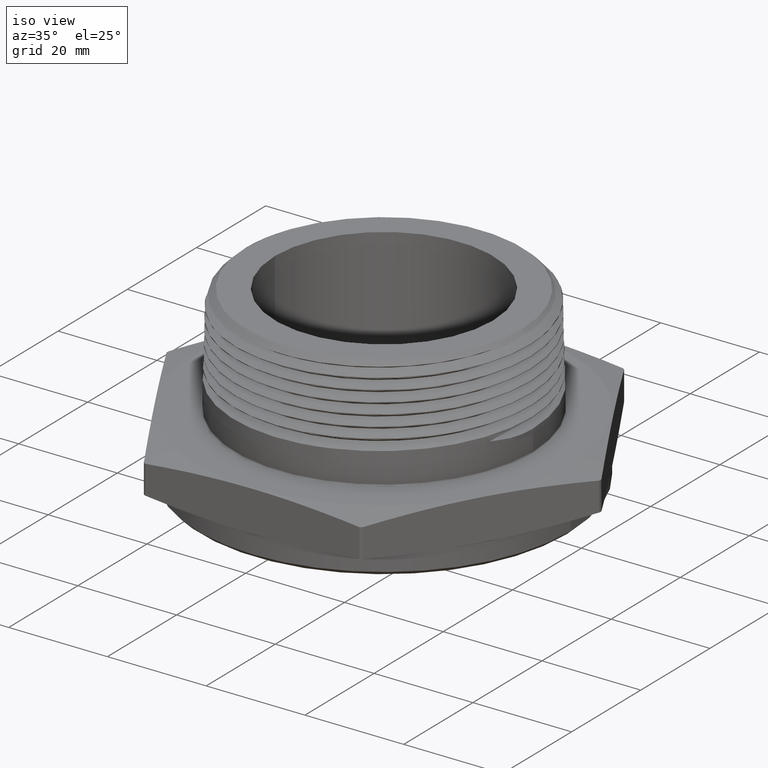
[diagram: clean part render]
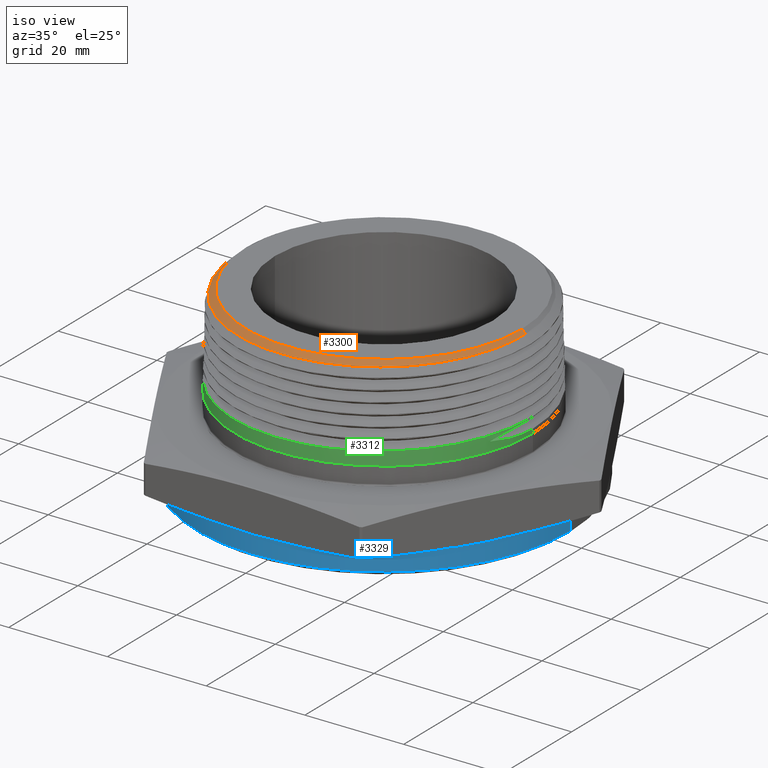
[diagram: same view with three faces highlighted in distinct colors, each labeled with its STEP entity id]
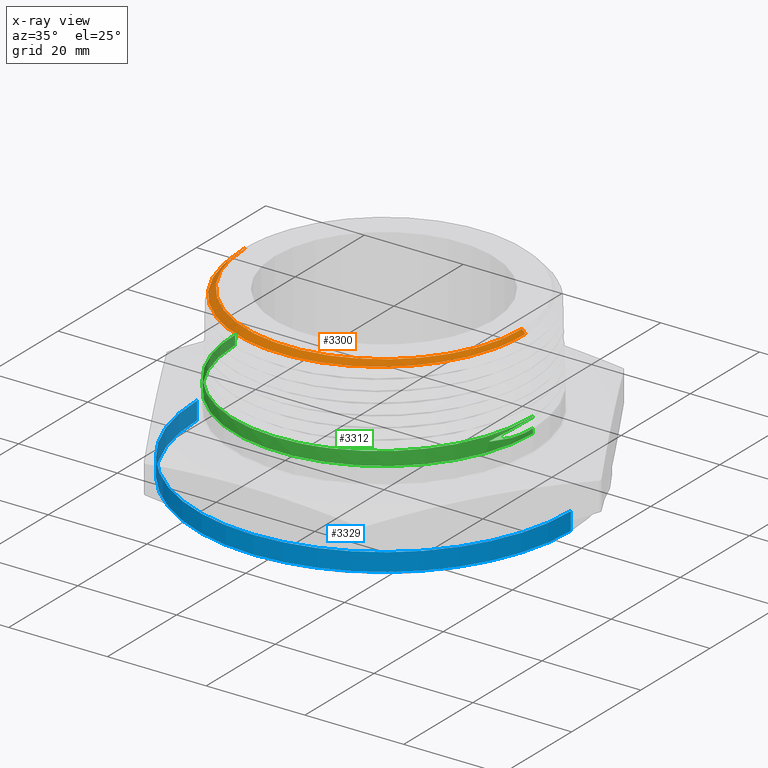
[diagram: x-ray of the same camera — body ghosted, the three highlighted faces saturated]
A machine part, iso view with three faces highlighted in distinct colors.
The next image is the same camera in x-ray (body ghosted, the three faces saturated) — at least one of them is partly hidden behind the body in this view.
Their STEP definitions:

[orange] entity #3300 — the highlighted conical surface has half-angle 45 deg.
#172 = B_SPLINE_CURVE_WITH_KNOTS ( 'NONE', 3,
 ( #1845, #1844, #1908, #1909, #1910, #1911, #1912, #1913, #1914, #1915, #1916, #1917, #1918, #1919, #1920, #1921, #1922, #1923, #1924, #1925, #1926, #1927, #1928, #1929, #1930, #1931, #1932, #1933, #1934, #1935, #1936, #1937, #1938, #1939, #1940, #1941, #1942, #1943, #1944, #1945, #1946, #1947, #1948, #1949, #1950, #1951, #1952, #1953, #1954, #1955, #1956, #1957, #1958, #1959, #1960, #1961, #1962, #1963, #1964, #1965, #1966, #1967, #1968, #1969, #1970, #1971 ),
 .UNSPECIFIED., .F., .F.,
 ( 4, 2, 2, 2, 2, 2, 2, 2, 2, 2, 2, 2, 2, 2, 2, 2, 2, 2, 2, 2, 2, 2, 2, 2, 2, 2, 2, 2, 2, 2, 2, 2, 4 ),
 ( 0.04868734609248241700, 0.05155479554185040500, 0.05442224499121838700, 0.05728969444058637500, 0.05872341916527036600, 0.06015714388995435600, 0.06589204278869031900, 0.06875949223805830100, 0.07019321696274230500, 0.07162694168742628200, 0.07736184058616225900, 0.07879556531084624900, 0.08022929003553025400, 0.08309673948489823500, 0.08883163838363422600, 0.09026536310831823100, 0.09169908783300223500, 0.09456653728237023000, 0.09743398673173822600, 0.09886771145642223000, 0.1003014361811062300, 0.1060363350798422300, 0.1089037845292102200, 0.1103375092538942300, 0.1117712339785782200, 0.1175061328773142100, 0.1203735823266822000, 0.1232410317760502000, 0.1289759306747861900, 0.1347108295735222100, 0.1375782790228902200, 0.1390120037475742200, 0.1404457284722582200 ),
 .UNSPECIFIED. ) ;
#173 = B_SPLINE_CURVE_WITH_KNOTS ( 'NONE', 3,
 ( #1907, #1906, #1977, #1978, #1979, #1980 ),
 .UNSPECIFIED., .F., .F.,
 ( 4, 2, 4 ),
 ( 0.0000000000000000000, 0.002267236822697387800, 0.004534473645394775600 ),
 .UNSPECIFIED. ) ;
#742 = CARTESIAN_POINT ( 'NONE',  ( -1.099700000000000100, 0.0000000000000000000, 1.200000000000000000 ) ) ;
#743 = CARTESIAN_POINT ( 'NONE',  ( 1.099700000000000100, 1.381438622983947700E-016, 1.200000000000000000 ) ) ;
#744 = CARTESIAN_POINT ( 'NONE',  ( -1.086377111140542700, -0.1773428476099730700, 1.198943118028106700 ) ) ;
#746 = CARTESIAN_POINT ( 'NONE',  ( 1.128048924917789600, 2.774533118565267500E-016, 1.171651075082210900 ) ) ;
#748 = CARTESIAN_POINT ( 'NONE',  ( -1.100815782494587200, -4.758545883243128000E-013, 1.198884217505412900 ) ) ;
#750 = CARTESIAN_POINT ( 'NONE',  ( -1.105975229220447200, 2.170469800391788100E-015, 1.193724770779553300 ) ) ;
#751 = CARTESIAN_POINT ( 'NONE',  ( -1.156022545099350200, -7.616783877516080300E-013, 1.143677454900650500 ) ) ;
#865 = EDGE_LOOP ( 'NONE', ( #2938, #2939, #2940, #2941, #2942, #2943, #2944 ) ) ;
#1421 = DIRECTION ( 'NONE',  ( 0.7071067811865516800, 8.659560562354983400E-017, -0.7071067811865433500 ) ) ;
#1424 = CARTESIAN_POINT ( 'NONE',  ( 1.193381189221745000, 1.461470453543071700E-016, 1.106318810778256200 ) ) ;
#1574 = DIRECTION ( 'NONE',  ( -0.7071067811865516800, 0.0000000000000000000, -0.7071067811865433500 ) ) ;
#1614 = CARTESIAN_POINT ( 'NONE',  ( -1.193381189221745000, 0.0000000000000000000, 1.106318810778256200 ) ) ;
#1615 = CARTESIAN_POINT ( 'NONE',  ( 0.0000000000000000000, 0.0000000000000000000, 1.200000000000000000 ) ) ;
#1616 = DIRECTION ( 'NONE',  ( -0.0000000000000000000, -0.0000000000000000000, -1.000000000000000000 ) ) ;
#1617 = DIRECTION ( 'NONE',  ( -1.000000000000000000, 0.0000000000000000000, 0.0000000000000000000 ) ) ;
#1652 = CARTESIAN_POINT ( 'NONE',  ( -1.100815782494587200, -4.758545883243128000E-013, 1.198884217505412900 ) ) ;
#1660 = CARTESIAN_POINT ( 'NONE',  ( -1.100806205085751000, -0.02968471655013145800, 1.198893794914236000 ) ) ;
#1665 = CARTESIAN_POINT ( 'NONE',  ( -1.099589375239146600, -0.05941197086799673100, 1.198906587762517800 ) ) ;
#1666 = CARTESIAN_POINT ( 'NONE',  ( -1.094771355935574300, -0.1185604882071055700, 1.198927329942677900 ) ) ;
#1667 = CARTESIAN_POINT ( 'NONE',  ( -1.091172925390690800, -0.1480129665411386600, 1.198935288694481500 ) ) ;
#1668 = CARTESIAN_POINT ( 'NONE',  ( -1.086377111140542700, -0.1773428476099730700, 1.198943118028106700 ) ) ;
#1844 = CARTESIAN_POINT ( 'NONE',  ( -1.155732476112274700, -0.03765900173205198600, 1.143967523887701600 ) ) ;
#1845 = CARTESIAN_POINT ( 'NONE',  ( -1.156022545099350200, -7.616783877516080300E-013, 1.143677454900650500 ) ) ;
#1906 = CARTESIAN_POINT ( 'NONE',  ( -1.092044101637952500, -0.1480651475286478600, 1.198067086201881400 ) ) ;
#1907 = CARTESIAN_POINT ( 'NONE',  ( -1.086377111140542700, -0.1773428476099730700, 1.198943118028106700 ) ) ;
#1908 = CARTESIAN_POINT ( 'NONE',  ( -1.153584839232487400, -0.07538326107920552400, 1.144259948200319100 ) ) ;
#1909 = CARTESIAN_POINT ( 'NONE',  ( -1.145720699123025300, -0.1497748199282994100, 1.144836582522254400 ) ) ;
#1910 = CARTESIAN_POINT ( 'NONE',  ( -1.140008385819409900, -0.1865861414300361800, 1.145121930871935100 ) ) ;
#1911 = CARTESIAN_POINT ( 'NONE',  ( -1.125075326211576500, -0.2594510406445312800, 1.145695519098483400 ) ) ;
#1912 = CARTESIAN_POINT ( 'NONE',  ( -1.115854318485020500, -0.2955045600757357800, 1.145983988746625900 ) ) ;
#1913 = CARTESIAN_POINT ( 'NONE',  ( -1.099364826409969400, -0.3490107947201751500, 1.146416312541696400 ) ) ;
#1914 = CARTESIAN_POINT ( 'NONE',  ( -1.093424474360386900, -0.3667503461550684600, 1.146560450143012700 ) ) ;
#1915 = CARTESIAN_POINT ( 'NONE',  ( -1.080640879387543700, -0.4020344445436990800, 1.146849476856488500 ) ) ;
#1916 = CARTESIAN_POINT ( 'NONE',  ( -1.073776745271948700, -0.4196270458304300900, 1.146994769250651200 ) ) ;
#1917 = CARTESIAN_POINT ( 'NONE',  ( -1.037436774273118800, -0.5064032880679688600, 1.147721165878564900 ) ) ;
#1918 = CARTESIAN_POINT ( 'NONE',  ( -1.002066694281524600, -0.5719574629704704500, 1.148295106368106400 ) ) ;
#1919 = CARTESIAN_POINT ( 'NONE',  ( -0.9398631380633758500, -0.6646717845927052600, 1.149158233272310000 ) ) ;
#1920 = CARTESIAN_POINT ( 'NONE',  ( -0.9175910766083088500, -0.6946325206029390100, 1.149448517938400600 ) ) ;
#1921 = CARTESIAN_POINT ( 'NONE',  ( -0.8818183673826083300, -0.7381217991068145200, 1.149884749305942800 ) ) ;
#1922 = CARTESIAN_POINT ( 'NONE',  ( -0.8694631503084810900, -0.7524140373077605700, 1.150030784206960800 ) ) ;
#1923 = CARTESIAN_POINT ( 'NONE',  ( -0.8441693956955332900, -0.7802582574265177800, 1.150321398593441700 ) ) ;
#1924 = CARTESIAN_POINT ( 'NONE',  ( -0.8312284866545915900, -0.7938181454637982500, 1.150466040426255900 ) ) ;
#1925 = CARTESIAN_POINT ( 'NONE',  ( -0.7650788531621326400, -0.8598373159049081900, 1.151189555432539100 ) ) ;
#1926 = CARTESIAN_POINT ( 'NONE',  ( -0.7075784400428873900, -0.9070095293552191700, 1.151764743334755800 ) ) ;
#1927 = CARTESIAN_POINT ( 'NONE',  ( -0.6299888595283736900, -0.9589353380601494100, 1.152488463553183600 ) ) ;
#1928 = CARTESIAN_POINT ( 'NONE',  ( -0.6141822792022313400, -0.9689648707373748100, 1.152634120106804900 ) ) ;
#1929 = CARTESIAN_POINT ( 'NONE',  ( -0.5819822340152053200, -0.9883009142329367600, 1.152926544696384600 ) ) ;
#1930 = CARTESIAN_POINT ( 'NONE',  ( -0.5655451191490117300, -0.9976292404965392300, 1.153073649091708400 ) ) ;
#1931 = CARTESIAN_POINT ( 'NONE',  ( -0.5158245019468493700, -1.024248867222522500, 1.153511935127348600 ) ) ;
#1932 = CARTESIAN_POINT ( 'NONE',  ( -0.4820495801586481300, -1.040240430317982600, 1.153800519382405000 ) ) ;
#1933 = CARTESIAN_POINT ( 'NONE',  ( -0.3788915241054038300, -1.083090701929886300, 1.154667715753171100 ) ) ;
#1934 = CARTESIAN_POINT ( 'NONE',  ( -0.3076933121901762600, -1.104875954972495100, 1.155245467548397600 ) ) ;
#1935 = CARTESIAN_POINT ( 'NONE',  ( -0.2155737740381611100, -1.123381399379761700, 1.155975949610936300 ) ) ;
#1936 = CARTESIAN_POINT ( 'NONE',  ( -0.1969550235509941500, -1.126645012103210300, 1.156123456666904100 ) ) ;
#1937 = CARTESIAN_POINT ( 'NONE',  ( -0.1597951184872405700, -1.132216736225951600, 1.156416892652937900 ) ) ;
#1938 = CARTESIAN_POINT ( 'NONE',  ( -0.1412126949860451300, -1.134535049762150700, 1.156563099696703100 ) ) ;
#1939 = CARTESIAN_POINT ( 'NONE',  ( -0.08545814029229337200, -1.140112162738814700, 1.156999903189288100 ) ) ;
#1940 = CARTESIAN_POINT ( 'NONE',  ( -0.04827874102876895300, -1.141996760524349700, 1.157288297448146400 ) ) ;
#1941 = CARTESIAN_POINT ( 'NONE',  ( 0.02609917198298903800, -1.142139833789602000, 1.157867426042184400 ) ) ;
#1942 = CARTESIAN_POINT ( 'NONE',  ( 0.06329768296676777100, -1.140397322790171800, 1.158159177581138800 ) ) ;
#1943 = CARTESIAN_POINT ( 'NONE',  ( 0.1191100115545066400, -1.135023456407182400, 1.158596962962934700 ) ) ;
#1944 = CARTESIAN_POINT ( 'NONE',  ( 0.1377165522320919800, -1.132771266482142800, 1.158742986337622800 ) ) ;
#1945 = CARTESIAN_POINT ( 'NONE',  ( 0.1749345861683658500, -1.127327066544201500, 1.159035833603873700 ) ) ;
#1946 = CARTESIAN_POINT ( 'NONE',  ( 0.1935585197163900700, -1.124129488632241500, 1.159182761490336300 ) ) ;
#1947 = CARTESIAN_POINT ( 'NONE',  ( 0.2856529516094357100, -1.105961873391331700, 1.159914804762040200 ) ) ;
#1948 = CARTESIAN_POINT ( 'NONE',  ( 0.3569030055293710400, -1.084416281480152300, 1.160495050521652500 ) ) ;
#1949 = CARTESIAN_POINT ( 'NONE',  ( 0.4602216756416415100, -1.041817434594732900, 1.161367917406719700 ) ) ;
#1950 = CARTESIAN_POINT ( 'NONE',  ( 0.4940633866030457200, -1.025889697362678800, 1.161661848249700300 ) ) ;
#1951 = CARTESIAN_POINT ( 'NONE',  ( 0.5439011848587670400, -0.9993248965877936700, 1.162104122169632400 ) ) ;
#1952 = CARTESIAN_POINT ( 'NONE',  ( 0.5603326090586350200, -0.9900343603770483900, 1.162251624047457400 ) ) ;
#1953 = CARTESIAN_POINT ( 'NONE',  ( 0.5925243067502423700, -0.9707673259662331600, 1.162544603535244000 ) ) ;
#1954 = CARTESIAN_POINT ( 'NONE',  ( 0.6083292104345888700, -0.9607675901275059000, 1.162690476933392600 ) ) ;
#1955 = CARTESIAN_POINT ( 'NONE',  ( 0.6859197802182609400, -0.9089640156875500300, 1.163420383313245000 ) ) ;
#1956 = CARTESIAN_POINT ( 'NONE',  ( 0.7434476384414554500, -0.8618008686725428000, 1.164001840841155700 ) ) ;
#1957 = CARTESIAN_POINT ( 'NONE',  ( 0.8228515772373431500, -0.7823865557919875700, 1.164881848956407500 ) ) ;
#1958 = CARTESIAN_POINT ( 'NONE',  ( 0.8482733783306230000, -0.7543021652488030000, 1.165180463770775700 ) ) ;
#1959 = CARTESIAN_POINT ( 'NONE',  ( 0.8957575758972289300, -0.6962917450497265700, 1.165769258638797300 ) ) ;
#1960 = CARTESIAN_POINT ( 'NONE',  ( 0.9179195061676614900, -0.6662932916888377700, 1.166060333538932300 ) ) ;
#1961 = CARTESIAN_POINT ( 'NONE',  ( 0.9797589916207393200, -0.5733775314606277500, 1.166936490996067300 ) ) ;
#1962 = CARTESIAN_POINT ( 'NONE',  ( 1.014865097652383400, -0.5075100745602109100, 1.167521278837967400 ) ) ;
#1963 = CARTESIAN_POINT ( 'NONE',  ( 1.072124175133960100, -0.3679437908167438900, 1.168707562117999000 ) ) ;
#1964 = CARTESIAN_POINT ( 'NONE',  ( 1.093368728309821900, -0.2964872291066754700, 1.169292297975261100 ) ) ;
#1965 = CARTESIAN_POINT ( 'NONE',  ( 1.114581296320446200, -0.1868882739845920100, 1.170171725456941000 ) ) ;
#1966 = CARTESIAN_POINT ( 'NONE',  ( 1.119861132993982300, -0.1499494839214511600, 1.170467215691423500 ) ) ;
#1967 = CARTESIAN_POINT ( 'NONE',  ( 1.125031369705212100, -0.09391829508241167400, 1.170911070203300800 ) ) ;
#1968 = CARTESIAN_POINT ( 'NONE',  ( 1.126297208829340600, -0.07508840577746221700, 1.171059607196799800 ) ) ;
#1969 = CARTESIAN_POINT ( 'NONE',  ( 1.127879177832301800, -0.03746228037603365600, 1.171355935803870300 ) ) ;
#1970 = CARTESIAN_POINT ( 'NONE',  ( 1.128196566643479000, -0.01870416178382150800, 1.171503433356522400 ) ) ;
#1971 = CARTESIAN_POINT ( 'NONE',  ( 1.128048924917789600, 2.774533118565267500E-016, 1.171651075082210900 ) ) ;
#1972 = CARTESIAN_POINT ( 'NONE',  ( -1.193381189221745000, 0.0000000000000000000, 1.106318810778256200 ) ) ;
#1973 = DIRECTION ( 'NONE',  ( -0.7071067811865516800, 0.0000000000000000000, -0.7071067811865433500 ) ) ;
#1977 = CARTESIAN_POINT ( 'NONE',  ( -1.096505697157815800, -0.1186446536988723400, 1.197194913947073700 ) ) ;
#1978 = CARTESIAN_POINT ( 'NONE',  ( -1.103036798239352100, -0.05952028204620248000, 1.195458627261829700 ) ) ;
#1979 = CARTESIAN_POINT ( 'NONE',  ( -1.105107613503386800, -0.02974379452529618900, 1.194592386496614400 ) ) ;
#1980 = CARTESIAN_POINT ( 'NONE',  ( -1.105975229220447200, 2.170469800391788100E-015, 1.193724770779553300 ) ) ;
#2372 = VERTEX_POINT ( 'NONE', #742 ) ;
#2373 = VERTEX_POINT ( 'NONE', #743 ) ;
#2374 = VERTEX_POINT ( 'NONE', #744 ) ;
#2376 = VERTEX_POINT ( 'NONE', #746 ) ;
#2378 = VERTEX_POINT ( 'NONE', #748 ) ;
#2380 = VERTEX_POINT ( 'NONE', #750 ) ;
#2381 = VERTEX_POINT ( 'NONE', #751 ) ;
#2778 = DIRECTION ( 'NONE',  ( -1.000000000000000000, 0.0000000000000000000, 0.0000000000000000000 ) ) ;
#2779 = CARTESIAN_POINT ( 'NONE',  ( 0.0000000000000000000, 0.0000000000000000000, 1.106318810778256200 ) ) ;
#2780 = DIRECTION ( 'NONE',  ( -0.0000000000000000000, -0.0000000000000000000, -1.000000000000000000 ) ) ;
#2878 = FACE_OUTER_BOUND ( 'NONE', #865, .T. ) ;
#2885 = CONICAL_SURFACE ( 'NONE', #5798, 1.193381189221745000, 0.7853981633974541600 ) ;
#2938 = ORIENTED_EDGE ( 'NONE', *, *, #5716, .F. ) ;
#2939 = ORIENTED_EDGE ( 'NONE', *, *, #5750, .T. ) ;
#2940 = ORIENTED_EDGE ( 'NONE', *, *, #5751, .T. ) ;
#2941 = ORIENTED_EDGE ( 'NONE', *, *, #5763, .T. ) ;
#2942 = ORIENTED_EDGE ( 'NONE', *, *, #5778, .T. ) ;
#2943 = ORIENTED_EDGE ( 'NONE', *, *, #5777, .T. ) ;
#2944 = ORIENTED_EDGE ( 'NONE', *, *, #5776, .T. ) ;
#3300 = ADVANCED_FACE ( 'NONE', ( #2878 ), #2885, .T. ) ;
#4163 = LINE ( 'NONE', #1614, #4170 ) ;
#4166 = CIRCLE ( 'NONE', #5432, 1.099700000000000100 ) ;
#4170 = VECTOR ( 'NONE', #1574, 39.37007874015748100 ) ;
#4187 = LINE ( 'NONE', #1972, #4194 ) ;
#4194 = VECTOR ( 'NONE', #1973, 39.37007874015748100 ) ;
#5432 = AXIS2_PLACEMENT_3D ( 'NONE', #1615, #1616, #1617 ) ;
#5716 = EDGE_CURVE ( 'NONE', #2373, #2376, #7435, .T. ) ;
#5750 = EDGE_CURVE ( 'NONE', #2373, #2372, #4166, .T. ) ;
#5751 = EDGE_CURVE ( 'NONE', #2372, #2378, #4163, .T. ) ;
#5763 = EDGE_CURVE ( 'NONE', #2378, #2374, #7841, .T. ) ;
#5776 = EDGE_CURVE ( 'NONE', #2381, #2376, #172, .T. ) ;
#5777 = EDGE_CURVE ( 'NONE', #2380, #2381, #4187, .T. ) ;
#5778 = EDGE_CURVE ( 'NONE', #2374, #2380, #173, .T. ) ;
#5798 = AXIS2_PLACEMENT_3D ( 'NONE', #2779, #2780, #2778 ) ;
#7435 = LINE ( 'NONE', #1424, #7439 ) ;
#7439 = VECTOR ( 'NONE', #1421, 39.37007874015748100 ) ;
#7841 = B_SPLINE_CURVE_WITH_KNOTS ( 'NONE', 3,
 ( #1652, #1660, #1665, #1666, #1667, #1668 ),
 .UNSPECIFIED., .F., .F.,
 ( 4, 2, 4 ),
 ( 0.002414601907814261400, 0.004679204686607959000, 0.006943807465401657900 ),
 .UNSPECIFIED. ) ;

[blue] entity #3329 — the highlighted cylindrical surface (partial cylindrical patch) has radius 37.846 mm, axis along (-0, -0, 1).
#186 = VERTEX_POINT ( 'NONE', #888 ) ;
#188 = VERTEX_POINT ( 'NONE', #890 ) ;
#191 = VERTEX_POINT ( 'NONE', #882 ) ;
#296 = FACE_OUTER_BOUND ( 'NONE', #7201, .T. ) ;
#301 = CYLINDRICAL_SURFACE ( 'NONE', #5843, 1.490000000000000400 ) ;
#325 = CIRCLE ( 'NONE', #5397, 1.490000000000000400 ) ;
#738 = CARTESIAN_POINT ( 'NONE',  ( 1.490000000000000400, 0.0000000000000000000, -0.1500000000000016900 ) ) ;
#855 = VERTEX_POINT ( 'NONE', #738 ) ;
#882 = CARTESIAN_POINT ( 'NONE',  ( -1.490000000000000400, 1.824723730729556900E-016, -0.008097840331950446500 ) ) ;
#888 = CARTESIAN_POINT ( 'NONE',  ( -1.490000000000000400, 1.824723730729556900E-016, -0.1500000000000016900 ) ) ;
#890 = CARTESIAN_POINT ( 'NONE',  ( 1.490000000000000400, 0.0000000000000000000, -0.008097840331950633900 ) ) ;
#1505 = DIRECTION ( 'NONE',  ( -0.0000000000000000000, -0.0000000000000000000, 1.000000000000000000 ) ) ;
#1517 = CARTESIAN_POINT ( 'NONE',  ( -1.490000000000000400, 1.824723730729556900E-016, -0.1799999999999999900 ) ) ;
#1544 = CARTESIAN_POINT ( 'NONE',  ( 0.0000000000000000000, 0.0000000000000000000, -0.008097840331950540200 ) ) ;
#1545 = DIRECTION ( 'NONE',  ( -6.274932739761922300E-017, -0.0000000000000000000, -1.000000000000000000 ) ) ;
#1546 = DIRECTION ( 'NONE',  ( -1.000000000000000000, 0.0000000000000000000, 6.302501663235504600E-017 ) ) ;
#1557 = CARTESIAN_POINT ( 'NONE',  ( 1.490000000000000400, 0.0000000000000000000, -0.1799999999999999900 ) ) ;
#1564 = DIRECTION ( 'NONE',  ( -0.0000000000000000000, -0.0000000000000000000, 1.000000000000000000 ) ) ;
#3076 = ORIENTED_EDGE ( 'NONE', *, *, #5729, .F. ) ;
#3077 = ORIENTED_EDGE ( 'NONE', *, *, #5647, .T. ) ;
#3078 = ORIENTED_EDGE ( 'NONE', *, *, #5743, .T. ) ;
#3079 = ORIENTED_EDGE ( 'NONE', *, *, #5734, .T. ) ;
#3329 = ADVANCED_FACE ( 'NONE', ( #296 ), #301, .T. ) ;
#4157 = LINE ( 'NONE', #1557, #4159 ) ;
#4159 = VECTOR ( 'NONE', #1564, 39.37007874015748100 ) ;
#5397 = AXIS2_PLACEMENT_3D ( 'NONE', #6183, #6184, #6185 ) ;
#5422 = AXIS2_PLACEMENT_3D ( 'NONE', #1544, #1545, #1546 ) ;
#5647 = EDGE_CURVE ( 'NONE', #186, #855, #325, .T. ) ;
#5729 = EDGE_CURVE ( 'NONE', #186, #191, #7451, .T. ) ;
#5734 = EDGE_CURVE ( 'NONE', #188, #191, #7458, .T. ) ;
#5743 = EDGE_CURVE ( 'NONE', #855, #188, #4157, .T. ) ;
#5843 = AXIS2_PLACEMENT_3D ( 'NONE', #6042, #6034, #6040 ) ;
#6034 = DIRECTION ( 'NONE',  ( -0.0000000000000000000, -0.0000000000000000000, 1.000000000000000000 ) ) ;
#6040 = DIRECTION ( 'NONE',  ( 1.000000000000000000, 0.0000000000000000000, 0.0000000000000000000 ) ) ;
#6042 = CARTESIAN_POINT ( 'NONE',  ( 0.0000000000000000000, 0.0000000000000000000, -0.1799999999999999900 ) ) ;
#6183 = CARTESIAN_POINT ( 'NONE',  ( 0.0000000000000000000, 0.0000000000000000000, -0.1500000000000016900 ) ) ;
#6184 = DIRECTION ( 'NONE',  ( 0.0000000000000000000, 0.0000000000000000000, 1.000000000000000000 ) ) ;
#6185 = DIRECTION ( 'NONE',  ( -1.000000000000000000, 0.0000000000000000000, 0.0000000000000000000 ) ) ;
#7201 = EDGE_LOOP ( 'NONE', ( #3076, #3077, #3078, #3079 ) ) ;
#7451 = LINE ( 'NONE', #1517, #7454 ) ;
#7454 = VECTOR ( 'NONE', #1505, 39.37007874015748100 ) ;
#7458 = CIRCLE ( 'NONE', #5422, 1.490000000000000400 ) ;

[green] entity #3312 — the highlighted conical surface has half-angle 1.47 deg.
#735 = CARTESIAN_POINT ( 'NONE',  ( -1.187500000000000000, 0.0000000000000000000, 0.4712952533779566900 ) ) ;
#741 = CARTESIAN_POINT ( 'NONE',  ( 1.187500000000000000, 1.454268073987482100E-016, 0.4712952533779566900 ) ) ;
#749 = CARTESIAN_POINT ( 'NONE',  ( 1.184413435544530400, 2.023274920307594800E-015, 0.5915730164504496800 ) ) ;
#752 = CARTESIAN_POINT ( 'NONE',  ( -1.185529218039113300, 2.360294641209523300E-016, 0.5480930164504473900 ) ) ;
#753 = CARTESIAN_POINT ( 'NONE',  ( 1.186645000533695300, 2.325153602604478400E-015, 0.5046130164504504200 ) ) ;
#754 = CARTESIAN_POINT ( 'NONE',  ( 1.184542872171103500, 1.740775964228584400E-015, 0.5865291082060321000 ) ) ;
#756 = CARTESIAN_POINT ( 'NONE',  ( 1.117552519913329400, -0.3956899596870019900, 0.5478522102968977900 ) ) ;
#757 = CARTESIAN_POINT ( 'NONE',  ( 1.117552519913329400, -0.3959473495157791500, 0.5445035787355980700 ) ) ;
#825 = ORIENTED_EDGE ( 'NONE', *, *, #5689, .F. ) ;
#827 = ORIENTED_EDGE ( 'NONE', *, *, #5698, .F. ) ;
#828 = ORIENTED_EDGE ( 'NONE', *, *, #5695, .F. ) ;
#844 = ORIENTED_EDGE ( 'NONE', *, *, #5774, .F. ) ;
#845 = ORIENTED_EDGE ( 'NONE', *, *, #5700, .T. ) ;
#846 = ORIENTED_EDGE ( 'NONE', *, *, #5769, .T. ) ;
#847 = ORIENTED_EDGE ( 'NONE', *, *, #5699, .T. ) ;
#848 = ORIENTED_EDGE ( 'NONE', *, *, #5770, .F. ) ;
#863 = EDGE_LOOP ( 'NONE', ( #844, #845, #846, #847, #848, #827, #825, #828 ) ) ;
#1717 = CARTESIAN_POINT ( 'NONE',  ( -1.190625841662516200, 0.0000000000000000000, 0.3494869294921574300 ) ) ;
#1718 = DIRECTION ( 'NONE',  ( -0.02565352539212722600, 0.0000000000000000000, -0.9996708941621514900 ) ) ;
#1719 = CARTESIAN_POINT ( 'NONE',  ( 1.190625841662516200, 1.458096125974123800E-016, 0.3494869294921574300 ) ) ;
#1720 = DIRECTION ( 'NONE',  ( 0.02565352539212722600, 3.141650775831395700E-018, -0.9996708941621514900 ) ) ;
#1783 = CARTESIAN_POINT ( 'NONE',  ( 1.190625841662516200, 1.458096125974123800E-016, 0.3494869294921574300 ) ) ;
#1843 = DIRECTION ( 'NONE',  ( 0.02565352539212722600, 3.141650775831395700E-018, -0.9996708941621514900 ) ) ;
#2370 = VERTEX_POINT ( 'NONE', #741 ) ;
#2371 = VERTEX_POINT ( 'NONE', #735 ) ;
#2379 = VERTEX_POINT ( 'NONE', #749 ) ;
#2382 = VERTEX_POINT ( 'NONE', #752 ) ;
#2383 = VERTEX_POINT ( 'NONE', #753 ) ;
#2384 = VERTEX_POINT ( 'NONE', #754 ) ;
#2386 = VERTEX_POINT ( 'NONE', #756 ) ;
#2387 = VERTEX_POINT ( 'NONE', #757 ) ;
#2814 = DIRECTION ( 'NONE',  ( -1.000000000000000000, 0.0000000000000000000, 0.0000000000000000000 ) ) ;
#2815 = CARTESIAN_POINT ( 'NONE',  ( 0.0000000000000000000, 0.0000000000000000000, 0.3494869294921574300 ) ) ;
#2816 = DIRECTION ( 'NONE',  ( -0.0000000000000000000, -0.0000000000000000000, -1.000000000000000000 ) ) ;
#2827 = CONICAL_SURFACE ( 'NONE', #5812, 1.190625841662516200, 0.02565634000430881300 ) ;
#2870 = FACE_OUTER_BOUND ( 'NONE', #863, .T. ) ;
#3312 = ADVANCED_FACE ( 'NONE', ( #2870 ), #2827, .T. ) ;
#3658 = CARTESIAN_POINT ( 'NONE',  ( 1.117552519913329400, -0.3956899596870019900, 0.5478522102968977900 ) ) ;
#3659 = CARTESIAN_POINT ( 'NONE',  ( 1.117552519913329400, -0.3957757808937821300, 0.5467360023395784200 ) ) ;
#3663 = CARTESIAN_POINT ( 'NONE',  ( 1.117552519913329400, -0.3958615774875196000, 0.5456197918174928700 ) ) ;
#3664 = CARTESIAN_POINT ( 'NONE',  ( 1.117552519913329400, -0.3959473495157791500, 0.5445035787355980700 ) ) ;
#3705 = CARTESIAN_POINT ( 'NONE',  ( 1.184542872171103500, 1.740775964228584400E-015, 0.5865291082060321000 ) ) ;
#3706 = CARTESIAN_POINT ( 'NONE',  ( 1.184542872171104000, -0.1350359330577049800, 0.5865291082060321000 ) ) ;
#3711 = CARTESIAN_POINT ( 'NONE',  ( 1.162001961947025900, -0.2681776699984285700, 0.5735151076203812700 ) ) ;
#3712 = CARTESIAN_POINT ( 'NONE',  ( 1.117552519913329400, -0.3956899596870019900, 0.5478522102968977900 ) ) ;
#3751 = CARTESIAN_POINT ( 'NONE',  ( 1.163383376826498700, -0.2686240571228487000, 0.5180431211595881700 ) ) ;
#3752 = CARTESIAN_POINT ( 'NONE',  ( 1.117552519913329400, -0.3959473495157791500, 0.5445035787355980700 ) ) ;
#3757 = CARTESIAN_POINT ( 'NONE',  ( 1.186645000533695000, -0.1353189829729566400, 0.5046130164504505400 ) ) ;
#3758 = CARTESIAN_POINT ( 'NONE',  ( 1.186645000533695300, 2.325153602604478400E-015, 0.5046130164504504200 ) ) ;
#3759 = CARTESIAN_POINT ( 'NONE',  ( 1.184413435544530400, 2.023274920307594800E-015, 0.5915730164504496800 ) ) ;
#3760 = CARTESIAN_POINT ( 'NONE',  ( 1.184436904304789500, -0.07826431744836459500, 0.5906584818516429400 ) ) ;
#3761 = CARTESIAN_POINT ( 'NONE',  ( 0.0000000000000000000, 0.0000000000000000000, 0.4712952533779566900 ) ) ;
#3762 = DIRECTION ( 'NONE',  ( 0.0000000000000000000, 0.0000000000000000000, 1.000000000000000000 ) ) ;
#3763 = DIRECTION ( 'NONE',  ( -1.000000000000000000, 0.0000000000000000000, 0.0000000000000000000 ) ) ;
#3765 = CARTESIAN_POINT ( 'NONE',  ( 1.176771664654019800, -0.1554336755222437700, 0.5897567843123877600 ) ) ;
#3766 = CARTESIAN_POINT ( 'NONE',  ( 1.154092631342868800, -0.2694434336449630400, 0.5883984675665007200 ) ) ;
#3767 = CARTESIAN_POINT ( 'NONE',  ( 1.144655896674124900, -0.3071624617352915500, 0.5879420261245268400 ) ) ;
#3768 = CARTESIAN_POINT ( 'NONE',  ( 1.121920402800851800, -0.3820158051357502300, 0.5870280252899651200 ) ) ;
#3769 = CARTESIAN_POINT ( 'NONE',  ( 1.108765608685982100, -0.4186584654597933500, 0.5865764198009528800 ) ) ;
#3770 = CARTESIAN_POINT ( 'NONE',  ( 1.064269766022528200, -0.5258705701184662700, 0.5852199606311758700 ) ) ;
#3771 = CARTESIAN_POINT ( 'NONE',  ( 1.027884076363623200, -0.5939477157700366900, 0.5843226632063148700 ) ) ;
#3772 = CARTESIAN_POINT ( 'NONE',  ( 0.9630843520744885000, -0.6908966854790582500, 0.5829601845324111600 ) ) ;
#3773 = CARTESIAN_POINT ( 'NONE',  ( 0.9396581548580159600, -0.7224534166193724600, 0.5824988859501232200 ) ) ;
#3774 = CARTESIAN_POINT ( 'NONE',  ( 0.8903191891692655600, -0.7824853483935372300, 0.5815911444461118200 ) ) ;
#3775 = CARTESIAN_POINT ( 'NONE',  ( 0.8643194336825234000, -0.8111168930147068000, 0.5811425668971687000 ) ) ;
#3776 = CARTESIAN_POINT ( 'NONE',  ( 0.8097128745357342600, -0.8656665595801400500, 0.5802407380244604100 ) ) ;
#3777 = CARTESIAN_POINT ( 'NONE',  ( 0.7811059959672754800, -0.8915846067973916000, 0.5797876777411564700 ) ) ;
#3778 = CARTESIAN_POINT ( 'NONE',  ( 0.7212622398211147000, -0.9406835027632252100, 0.5788834255647180600 ) ) ;
#3779 = CARTESIAN_POINT ( 'NONE',  ( 0.6899457887154806200, -0.9639174311499644200, 0.5784311758143402300 ) ) ;
#3780 = CARTESIAN_POINT ( 'NONE',  ( 0.5924134191483603200, -1.029016588526540800, 0.5770611715282997200 ) ) ;
#3781 = CARTESIAN_POINT ( 'NONE',  ( 0.5241697741679745000, -1.065354874533901400, 0.5761625851159181100 ) ) ;
#3782 = CARTESIAN_POINT ( 'NONE',  ( 0.4171468460384348300, -1.109654732528553300, 0.5748094592047576800 ) ) ;
#3783 = CARTESIAN_POINT ( 'NONE',  ( 0.3806906412739750600, -1.122707631859508200, 0.5743550255990732500 ) ) ;
#3784 = CARTESIAN_POINT ( 'NONE',  ( 0.3248037116765899500, -1.139651266307443800, 0.5736729105628244300 ) ) ;
#3785 = CARTESIAN_POINT ( 'NONE',  ( 0.3059211661436175300, -1.144871539213504700, 0.5734446677233802100 ) ) ;
#3786 = CARTESIAN_POINT ( 'NONE',  ( 0.2680380051176514100, -1.154340453980390500, 0.5729899176916176700 ) ) ;
#3787 = CARTESIAN_POINT ( 'NONE',  ( 0.2490522020910208900, -1.158588864762034800, 0.5727635688977413800 ) ) ;
#3788 = CARTESIAN_POINT ( 'NONE',  ( 0.1539063822530264100, -1.177447200961363700, 0.5716304335949772300 ) ) ;
#3789 = CARTESIAN_POINT ( 'NONE',  ( 0.07710192475132103500, -1.184973473918633900, 0.5707335911635749200 ) ) ;
#3790 = CARTESIAN_POINT ( 'NONE',  ( -0.01975949353367915200, -1.184970856004429000, 0.5696022195038199500 ) ) ;
#3791 = CARTESIAN_POINT ( 'NONE',  ( -0.03917494250641760000, -1.184495602943351500, 0.5693746123928566900 ) ) ;
#3792 = CARTESIAN_POINT ( 'NONE',  ( -0.07809367992319807300, -1.182579235049753000, 0.5689181625976191800 ) ) ;
#3793 = CARTESIAN_POINT ( 'NONE',  ( -0.09764811409106778600, -1.181131644186109700, 0.5686887227160925000 ) ) ;
#3794 = CARTESIAN_POINT ( 'NONE',  ( -0.1558810119750040900, -1.175368545169658300, 0.5680053221006717800 ) ) ;
#3795 = CARTESIAN_POINT ( 'NONE',  ( -0.1942286487246040500, -1.169642377170521800, 0.5675557468259282400 ) ) ;
#3796 = CARTESIAN_POINT ( 'NONE',  ( -0.3078895741031049100, -1.146975127150197600, 0.5662019879866129200 ) ) ;
#3797 = CARTESIAN_POINT ( 'NONE',  ( -0.3818341387260658600, -1.124597416965664700, 0.5653042582663464500 ) ) ;
#3798 = CARTESIAN_POINT ( 'NONE',  ( -0.4719121120288005700, -1.087281457054007200, 0.5641655427697012100 ) ) ;
#3799 = CARTESIAN_POINT ( 'NONE',  ( -0.4898380735924952000, -1.079330429471033700, 0.5639357448336045400 ) ) ;
#3800 = CARTESIAN_POINT ( 'NONE',  ( -0.5250657263213017700, -1.062651996271045700, 0.5634792285993411900 ) ) ;
#3801 = CARTESIAN_POINT ( 'NONE',  ( -0.5424120055701681100, -1.053907941106706000, 0.5632519548737204800 ) ) ;
#3802 = CARTESIAN_POINT ( 'NONE',  ( -0.5936620280979049100, -1.026482177519652200, 0.5625731951975933000 ) ) ;
#3803 = CARTESIAN_POINT ( 'NONE',  ( -0.6267788105184746200, -1.006609663308308100, 0.5621254038063903100 ) ) ;
#3804 = CARTESIAN_POINT ( 'NONE',  ( -0.6909394509107157400, -0.9637282746562132500, 0.5612241661215883200 ) ) ;
#3805 = CARTESIAN_POINT ( 'NONE',  ( -0.7219833257536110200, -0.9407194236908464900, 0.5607708162469882100 ) ) ;
#3806 = CARTESIAN_POINT ( 'NONE',  ( -0.7669695272505586700, -0.9038160727221394900, 0.5600913676398471300 ) ) ;
#3807 = CARTESIAN_POINT ( 'NONE',  ( -0.7817011925934469500, -0.8911159072846307500, 0.5598648188039342400 ) ) ;
#3808 = CARTESIAN_POINT ( 'NONE',  ( -0.8106269640511548600, -0.8649022409037491200, 0.5594103379016044400 ) ) ;
#3809 = CARTESIAN_POINT ( 'NONE',  ( -0.8248183555316365200, -0.8513863292125607400, 0.5591824048771943900 ) ) ;
#3810 = CARTESIAN_POINT ( 'NONE',  ( -0.8936412855449353800, -0.7825250774067923400, 0.5580454621109439700 ) ) ;
#3811 = CARTESIAN_POINT ( 'NONE',  ( -0.9425880956109316000, -0.7227953231443586800, 0.5571481908769951900 ) ) ;
#3812 = CARTESIAN_POINT ( 'NONE',  ( -1.007043328477493300, -0.6263935771521300700, 0.5557941577256877400 ) ) ;
#3813 = CARTESIAN_POINT ( 'NONE',  ( -1.027023630729035000, -0.5931171240810783100, 0.5553388163583742300 ) ) ;
#3814 = CARTESIAN_POINT ( 'NONE',  ( -1.054662617911422700, -0.5414321495294431900, 0.5546544869149211400 ) ) ;
#3815 = CARTESIAN_POINT ( 'NONE',  ( -1.063460835725983200, -0.5239501452102234300, 0.5544265637524474800 ) ) ;
#3816 = CARTESIAN_POINT ( 'NONE',  ( -1.080093266743088500, -0.4887727452581078800, 0.5539735970703134600 ) ) ;
#3817 = CARTESIAN_POINT ( 'NONE',  ( -1.087950066177112900, -0.4710358169560428000, 0.5537479985039504000 ) ) ;
#3818 = CARTESIAN_POINT ( 'NONE',  ( -1.124972510443686300, -0.3816215748999309300, 0.5526180057561996800 ) ) ;
#3819 = CARTESIAN_POINT ( 'NONE',  ( -1.147417783802075400, -0.3077760317515845200, 0.5517212594924885100 ) ) ;
#3820 = CARTESIAN_POINT ( 'NONE',  ( -1.170216849645620000, -0.1935013841660278600, 0.5503608815617561100 ) ) ;
#3821 = CARTESIAN_POINT ( 'NONE',  ( -1.175997797514077800, -0.1546302611217479600, 0.5498999141274180100 ) ) ;
#3822 = CARTESIAN_POINT ( 'NONE',  ( -1.183625836761064600, -0.07724281038237762500, 0.5489920914323727100 ) ) ;
#3823 = CARTESIAN_POINT ( 'NONE',  ( -1.185517654841095900, -0.03859762246956349700, 0.5485436130964868000 ) ) ;
#3824 = CARTESIAN_POINT ( 'NONE',  ( -1.185529218039113300, 2.360294641209523300E-016, 0.5480930164504473900 ) ) ;
#4181 = LINE ( 'NONE', #1719, #4188 ) ;
#4184 = LINE ( 'NONE', #1783, #4192 ) ;
#4185 = LINE ( 'NONE', #1717, #4186 ) ;
#4186 = VECTOR ( 'NONE', #1718, 39.37007874015748100 ) ;
#4188 = VECTOR ( 'NONE', #1720, 39.37007874015748100 ) ;
#4192 = VECTOR ( 'NONE', #1843, 39.37007874015748100 ) ;
#5410 = AXIS2_PLACEMENT_3D ( 'NONE', #3761, #3762, #3763 ) ;
#5689 = EDGE_CURVE ( 'NONE', #2386, #2387, #7818, .T. ) ;
#5695 = EDGE_CURVE ( 'NONE', #2384, #2386, #7820, .T. ) ;
#5698 = EDGE_CURVE ( 'NONE', #2387, #2383, #7822, .T. ) ;
#5699 = EDGE_CURVE ( 'NONE', #2371, #2370, #7427, .T. ) ;
#5700 = EDGE_CURVE ( 'NONE', #2379, #2382, #7823, .T. ) ;
#5769 = EDGE_CURVE ( 'NONE', #2382, #2371, #4185, .T. ) ;
#5770 = EDGE_CURVE ( 'NONE', #2383, #2370, #4181, .T. ) ;
#5774 = EDGE_CURVE ( 'NONE', #2379, #2384, #4184, .T. ) ;
#5812 = AXIS2_PLACEMENT_3D ( 'NONE', #2815, #2816, #2814 ) ;
#7427 = CIRCLE ( 'NONE', #5410, 1.187500000000000000 ) ;
#7818 = B_SPLINE_CURVE_WITH_KNOTS ( 'NONE', 3,
 ( #3658, #3659, #3663, #3664 ),
 .UNSPECIFIED., .F., .F.,
 ( 4, 4 ),
 ( 0.05418363149093018800, 0.05426890626145883900 ),
 .UNSPECIFIED. ) ;
#7820 =( BOUNDED_CURVE ( )  B_SPLINE_CURVE ( 3, ( #3705, #3706, #3711, #3712 ),
 .UNSPECIFIED., .F., .F. ) 
 B_SPLINE_CURVE_WITH_KNOTS ( ( 4, 4 ),
 ( 3.141592653589793100, 3.476976211009786600 ),
 .UNSPECIFIED. ) 
 CURVE ( )  GEOMETRIC_REPRESENTATION_ITEM ( )  RATIONAL_B_SPLINE_CURVE ( ( 1.000000000000000000, 0.9906484342150427800, 0.9906484342150427800, 1.000000000000000000 ) ) 
 REPRESENTATION_ITEM ( '' )  );
#7822 =( BOUNDED_CURVE ( )  B_SPLINE_CURVE ( 3, ( #3752, #3751, #3757, #3758 ),
 .UNSPECIFIED., .F., .F. ) 
 B_SPLINE_CURVE_WITH_KNOTS ( ( 4, 4 ),
 ( 5.937703143357008000, 6.283185307179587100 ),
 .UNSPECIFIED. ) 
 CURVE ( )  GEOMETRIC_REPRESENTATION_ITEM ( )  RATIONAL_B_SPLINE_CURVE ( ( 1.000000000000000000, 0.9900782148036579900, 0.9900782148036579900, 1.000000000000000000 ) ) 
 REPRESENTATION_ITEM ( '' )  );
#7823 = B_SPLINE_CURVE_WITH_KNOTS ( 'NONE', 3,
 ( #3759, #3760, #3765, #3766, #3767, #3768, #3769, #3770, #3771, #3772, #3773, #3774, #3775, #3776, #3777, #3778, #3779, #3780, #3781, #3782, #3783, #3784, #3785, #3786, #3787, #3788, #3789, #3790, #3791, #3792, #3793, #3794, #3795, #3796, #3797, #3798, #3799, #3800, #3801, #3802, #3803, #3804, #3805, #3806, #3807, #3808, #3809, #3810, #3811, #3812, #3813, #3814, #3815, #3816, #3817, #3818, #3819, #3820, #3821, #3822, #3823, #3824 ),
 .UNSPECIFIED., .F., .F.,
 ( 4, 2, 2, 2, 2, 2, 2, 2, 2, 2, 2, 2, 2, 2, 2, 2, 2, 2, 2, 2, 2, 2, 2, 2, 2, 2, 2, 2, 2, 2, 4 ),
 ( 1.169926016956276000, 1.175877955644010900, 1.178853924987878400, 1.181829894331746000, 1.187781833019480900, 1.190757802363348500, 1.193733771707215800, 1.196709741051083400, 1.199685710394951000, 1.205637649082685900, 1.208613618426553200, 1.210101603098487000, 1.211589587770420800, 1.217541526458155700, 1.219029511130089500, 1.220517495802023300, 1.223493465145890900, 1.229445403833625800, 1.230933388505559600, 1.232421373177493300, 1.235397342521360700, 1.238373311865228300, 1.239861296537162000, 1.241349281209095800, 1.247301219896830700, 1.250277189240698300, 1.251765173912632100, 1.253253158584565700, 1.259205097272300800, 1.262181066616168100, 1.265157035960035700 ),
 .UNSPECIFIED. ) ;